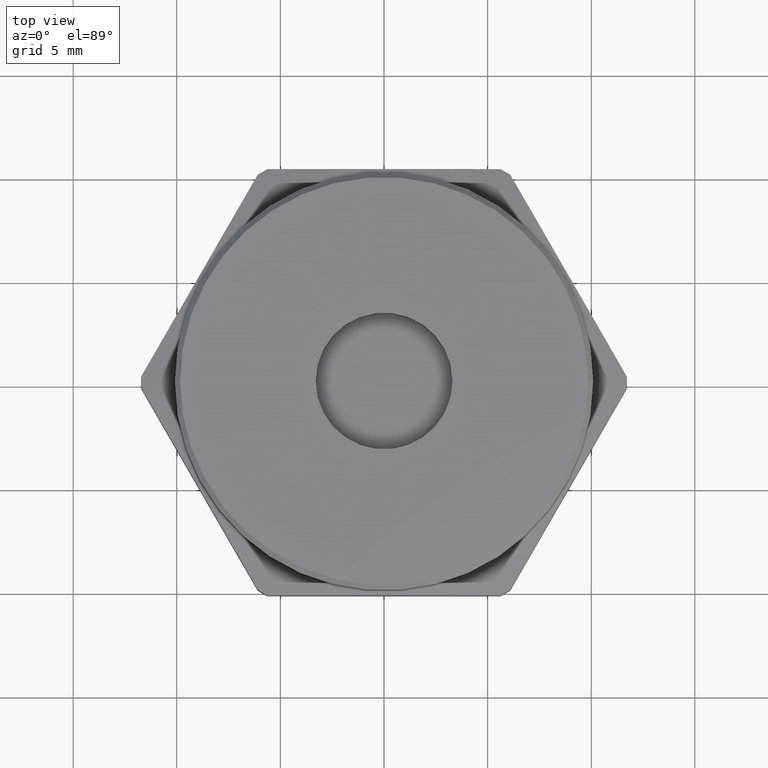
[diagram: clean part render]
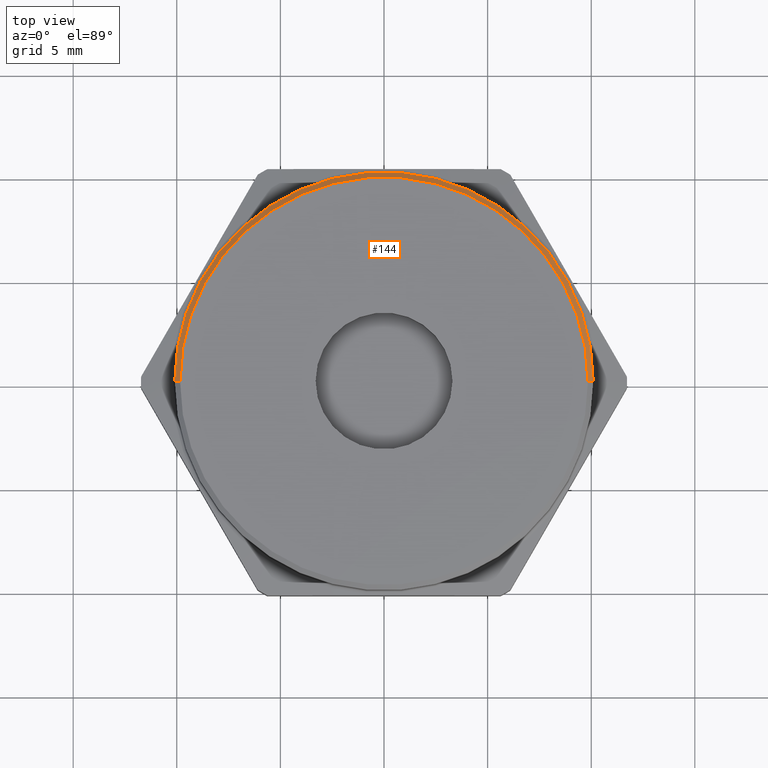
[diagram: same view with one face highlighted and labeled with its STEP entity id]
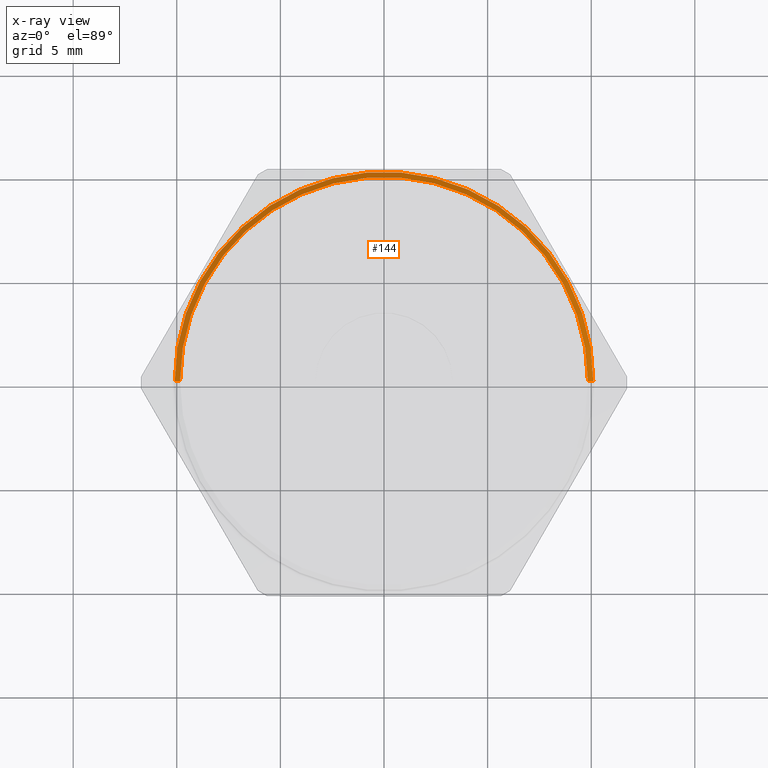
[diagram: x-ray of the same camera — body ghosted, the highlighted face saturated]
A machine part, top view. The second image highlights one B-rep face of the part: STEP entity #144.
The next image is the same camera in x-ray: the body ghosted, the highlighted face saturated — about 0% of this face is hidden behind the body in this view.
In plain terms, the highlighted conical surface has half-angle 45 deg.
Its self-contained STEP definition (entity closure, byte-faithful):
#131 = EDGE_LOOP ( 'NONE', ( #1906, #1907, #1908, #1909 ) ) ;
#144 = ADVANCED_FACE ( 'NONE', ( #1914 ), #1921, .T. ) ;
#265 = AXIS2_PLACEMENT_3D ( 'NONE', #2394, #2395, #2396 ) ;
#266 = AXIS2_PLACEMENT_3D ( 'NONE', #2397, #2398, #2399 ) ;
#372 = VERTEX_POINT ( 'NONE', #1487 ) ;
#378 = VERTEX_POINT ( 'NONE', #1497 ) ;
#379 = VERTEX_POINT ( 'NONE', #1498 ) ;
#458 = VERTEX_POINT ( 'NONE', #1545 ) ;
#478 = CIRCLE ( 'NONE', #265, 0.3974999999999999100 ) ;
#479 = LINE ( 'NONE', #2391, #482 ) ;
#481 = CIRCLE ( 'NONE', #266, 0.3875000000000007900 ) ;
#482 = VECTOR ( 'NONE', #2393, 39.37007874015748100 ) ;
#483 = LINE ( 'NONE', #2392, #485 ) ;
#485 = VECTOR ( 'NONE', #2386, 39.37007874015748100 ) ;
#737 = EDGE_CURVE ( 'NONE', #372, #379, #479, .T. ) ;
#738 = EDGE_CURVE ( 'NONE', #379, #458, #478, .T. ) ;
#739 = EDGE_CURVE ( 'NONE', #378, #458, #483, .T. ) ;
#740 = EDGE_CURVE ( 'NONE', #378, #372, #481, .T. ) ;
#760 = AXIS2_PLACEMENT_3D ( 'NONE', #2823, #2809, #2889 ) ;
#1487 = CARTESIAN_POINT ( 'NONE',  ( -0.3875000000000007900, 0.0000000000000000000, 0.2600000000000000100 ) ) ;
#1497 = CARTESIAN_POINT ( 'NONE',  ( 0.3875000000000007900, 4.806738686653366100E-017, 0.2600000000000000100 ) ) ;
#1498 = CARTESIAN_POINT ( 'NONE',  ( -0.3974999999999999100, 0.0000000000000000000, 0.2500000000000009400 ) ) ;
#1545 = CARTESIAN_POINT ( 'NONE',  ( 0.3974999999999999100, 4.867971026610726800E-017, 0.2500000000000009400 ) ) ;
#1906 = ORIENTED_EDGE ( 'NONE', *, *, #740, .F. ) ;
#1907 = ORIENTED_EDGE ( 'NONE', *, *, #739, .T. ) ;
#1908 = ORIENTED_EDGE ( 'NONE', *, *, #738, .F. ) ;
#1909 = ORIENTED_EDGE ( 'NONE', *, *, #737, .F. ) ;
#1914 = FACE_OUTER_BOUND ( 'NONE', #131, .T. ) ;
#1921 = CONICAL_SURFACE ( 'NONE', #760, 0.3875000000000007900, 0.7853981633974517200 ) ;
#2386 = DIRECTION ( 'NONE',  ( 0.7071067811865499000, 8.659560562354962400E-017, -0.7071067811865451300 ) ) ;
#2391 = CARTESIAN_POINT ( 'NONE',  ( -0.3875000000000007900, 0.0000000000000000000, 0.2600000000000000100 ) ) ;
#2392 = CARTESIAN_POINT ( 'NONE',  ( 0.3875000000000007900, 4.745506346696003500E-017, 0.2600000000000000100 ) ) ;
#2393 = DIRECTION ( 'NONE',  ( -0.7071067811865499000, 0.0000000000000000000, -0.7071067811865451300 ) ) ;
#2394 = CARTESIAN_POINT ( 'NONE',  ( 0.0000000000000000000, 0.0000000000000000000, 0.2500000000000009400 ) ) ;
#2395 = DIRECTION ( 'NONE',  ( 0.0000000000000000000, 0.0000000000000000000, -1.000000000000000000 ) ) ;
#2396 = DIRECTION ( 'NONE',  ( 1.000000000000000000, 0.0000000000000000000, 0.0000000000000000000 ) ) ;
#2397 = CARTESIAN_POINT ( 'NONE',  ( 0.0000000000000000000, 0.0000000000000000000, 0.2600000000000000100 ) ) ;
#2398 = DIRECTION ( 'NONE',  ( 0.0000000000000000000, 0.0000000000000000000, 1.000000000000000000 ) ) ;
#2399 = DIRECTION ( 'NONE',  ( 1.000000000000000000, 0.0000000000000000000, 0.0000000000000000000 ) ) ;
#2809 = DIRECTION ( 'NONE',  ( 0.0000000000000000000, 0.0000000000000000000, -1.000000000000000000 ) ) ;
#2823 = CARTESIAN_POINT ( 'NONE',  ( 0.0000000000000000000, 0.0000000000000000000, 0.2600000000000000100 ) ) ;
#2889 = DIRECTION ( 'NONE',  ( -1.000000000000000000, 0.0000000000000000000, 0.0000000000000000000 ) ) ;